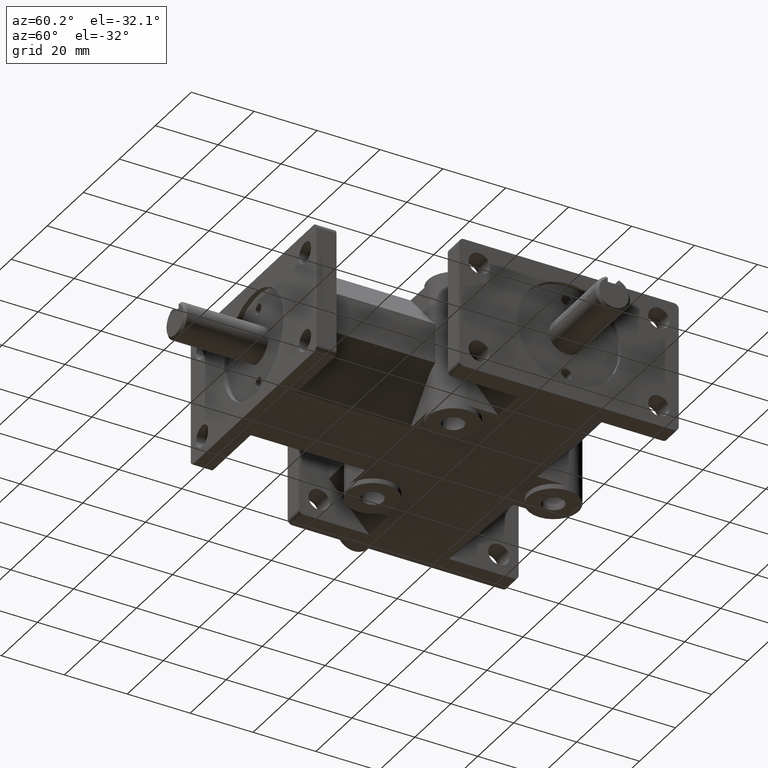
[diagram: clean part render]
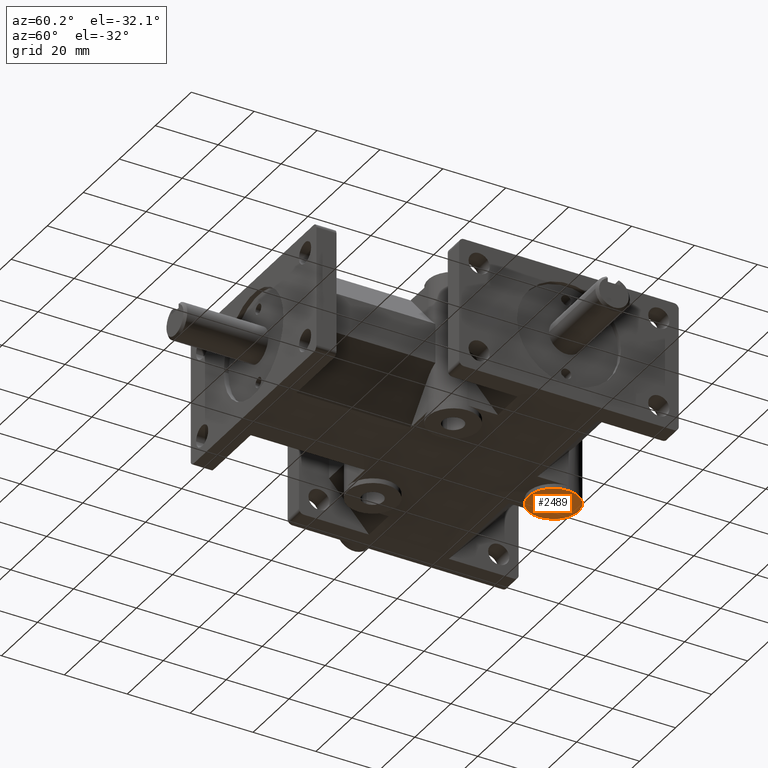
[diagram: same view with one face highlighted and labeled with its STEP entity id]
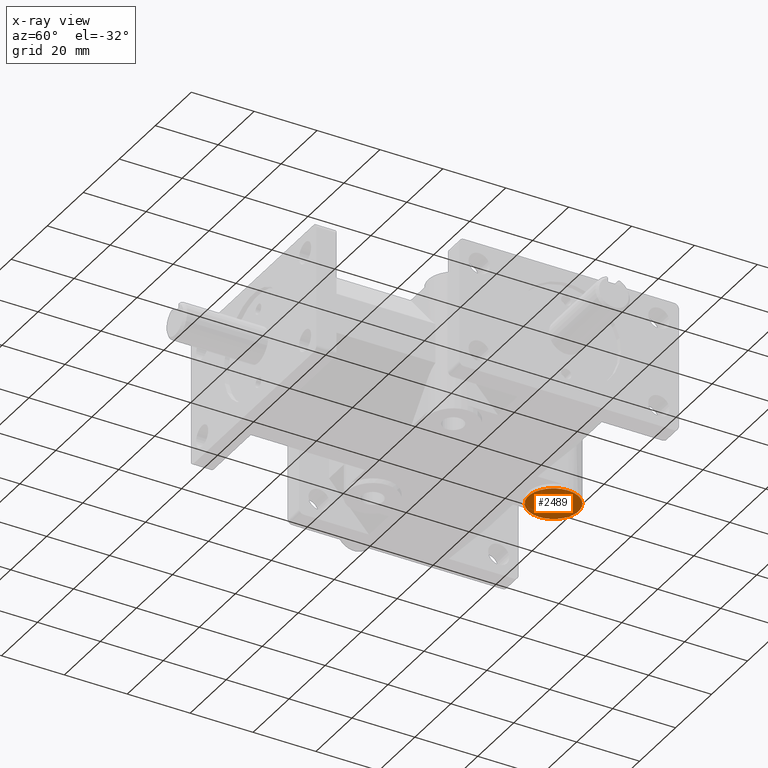
[diagram: x-ray of the same camera — body ghosted, the highlighted face saturated]
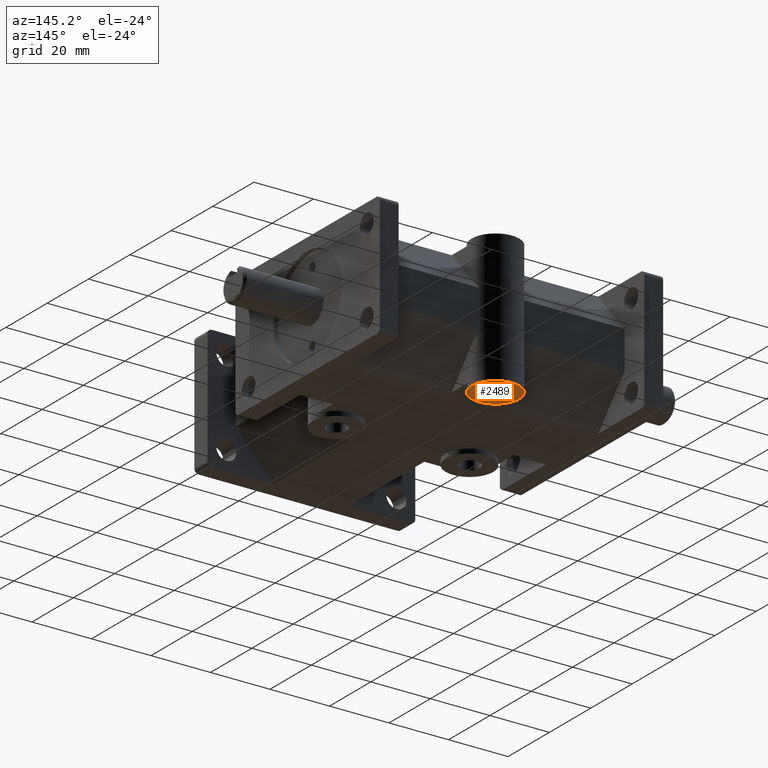
[diagram: same view with one face highlighted and labeled with its STEP entity id]
A machine part, auxiliary view. The second image highlights one B-rep face of the part: STEP entity #2489.
The next image is the same camera in x-ray: the body ghosted, the highlighted face saturated — about 0% of this face is hidden behind the body in this view.
A second angle (auxiliary view) of the same face is appended — the face is thin or edge-on in the first view.
In plain terms, the highlighted planar face has unit normal (0, 0, 1).
Its self-contained STEP definition (entity closure, byte-faithful):
#53=FACE_BOUND('',#505,.T.);
#210=CIRCLE('',#2747,8.001);
#211=CIRCLE('',#2749,3.3655);
#331=FACE_OUTER_BOUND('',#504,.T.);
#504=EDGE_LOOP('',(#2194));
#505=EDGE_LOOP('',(#2195));
#1225=VERTEX_POINT('',#4190);
#1226=VERTEX_POINT('',#4196);
#1561=EDGE_CURVE('',#1225,#1225,#210,.T.);
#1564=EDGE_CURVE('',#1226,#1226,#211,.T.);
#2194=ORIENTED_EDGE('',*,*,#1561,.F.);
#2195=ORIENTED_EDGE('',*,*,#1564,.T.);
#2362=PLANE('',#2748);
#2489=ADVANCED_FACE('',(#331,#53),#2362,.F.);
#2747=AXIS2_PLACEMENT_3D('',#4192,#3435,#3436);
#2748=AXIS2_PLACEMENT_3D('',#4195,#3439,#3440);
#2749=AXIS2_PLACEMENT_3D('',#4197,#3441,#3442);
#3435=DIRECTION('center_axis',(0.,0.,1.));
#3436=DIRECTION('ref_axis',(1.,0.,0.));
#3439=DIRECTION('center_axis',(0.,0.,1.));
#3440=DIRECTION('ref_axis',(-1.,0.,0.));
#3441=DIRECTION('center_axis',(0.,0.,1.));
#3442=DIRECTION('ref_axis',(1.,0.,0.));
#4190=CARTESIAN_POINT('',(-8.00100000000001,95.377,-22.225));
#4192=CARTESIAN_POINT('Origin',(-5.63993296509579E-15,95.377,-22.225));
#4195=CARTESIAN_POINT('Origin',(0.72736363636363,95.377,-22.225));
#4196=CARTESIAN_POINT('',(-3.36550000000001,95.377,-22.225));
#4197=CARTESIAN_POINT('Origin',(-5.63993296509579E-15,95.377,-22.225));